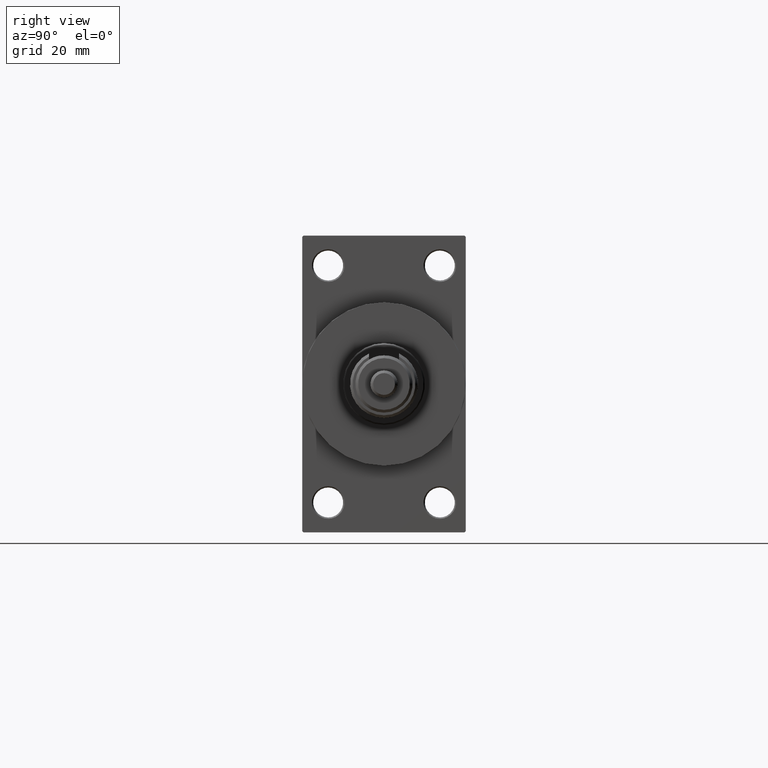
[diagram: clean part render]
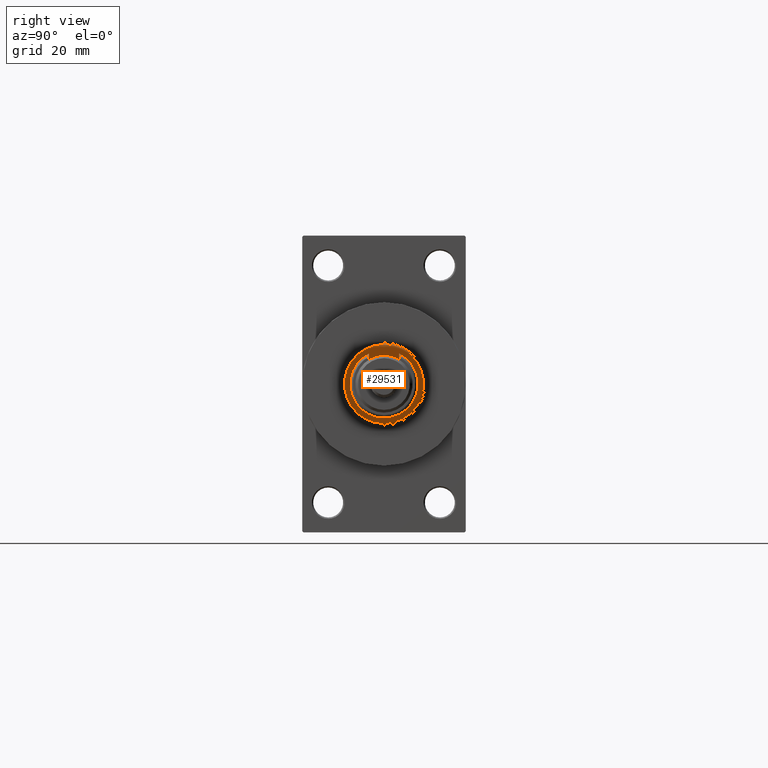
[diagram: same view with one face highlighted and labeled with its STEP entity id]
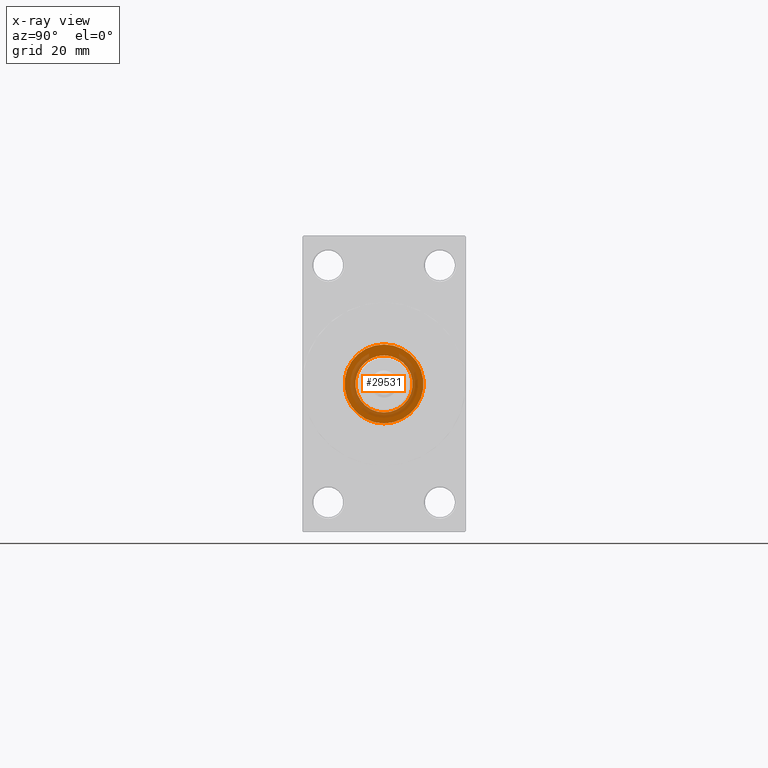
[diagram: x-ray of the same camera — body ghosted, the highlighted face saturated]
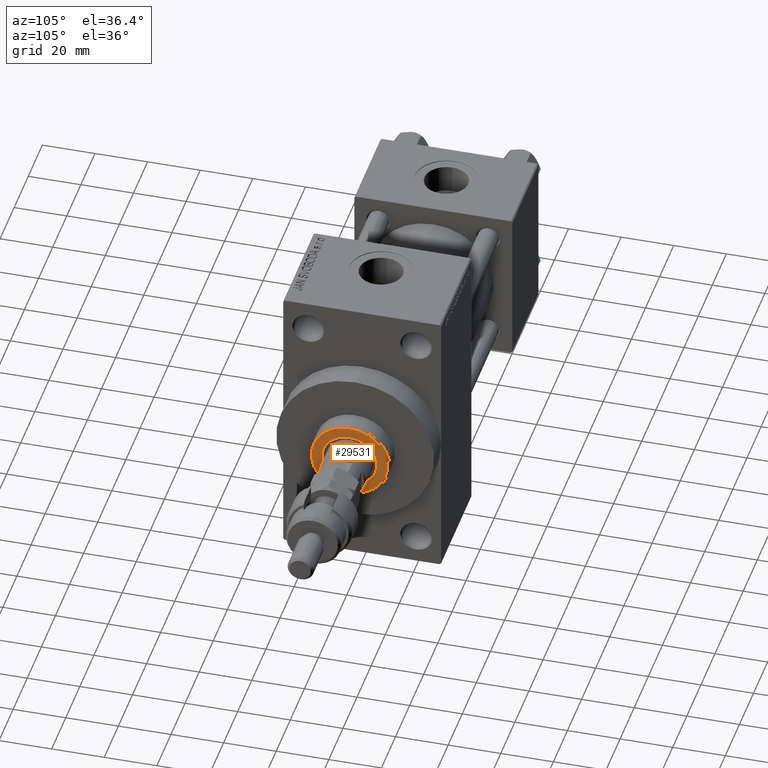
[diagram: same view with one face highlighted and labeled with its STEP entity id]
A machine part, right view. The second image highlights one B-rep face of the part: STEP entity #29531.
The next image is the same camera in x-ray: the body ghosted, the highlighted face saturated — about 39% of this face is hidden behind the body in this view.
A second angle (auxiliary view) of the same face is appended — the face is thin or edge-on in the first view.
In plain terms, the highlighted planar face has unit normal (1, -0, -0).
Its self-contained STEP definition (entity closure, byte-faithful):
#1975 = ORIENTED_EDGE ( 'NONE', *, *, #33935, .F. ) ;
#2108 = CARTESIAN_POINT ( 'NONE',  ( 0.000000000000000000, 0.000000000000000000, 51.25999999999999801 ) ) ;
#8774 = EDGE_CURVE ( 'NONE', #35781, #17901, #47987, .T. ) ;
#9178 = AXIS2_PLACEMENT_3D ( 'NONE', #2108, #21323, #36020 ) ;
#10050 = ORIENTED_EDGE ( 'NONE', *, *, #48961, .T. ) ;
#10380 = CARTESIAN_POINT ( 'NONE',  ( 0.000000000000000000, 0.000000000000000000, 51.25999999999999801 ) ) ;
#10581 = VERTEX_POINT ( 'NONE', #21591 ) ;
#10956 = AXIS2_PLACEMENT_3D ( 'NONE', #44468, #44715, #17630 ) ;
#15233 = DIRECTION ( 'NONE',  ( 1.000000000000000000, 0.000000000000000000, 0.000000000000000000 ) ) ;
#16676 = AXIS2_PLACEMENT_3D ( 'NONE', #37801, #22580, #15233 ) ;
#16779 = EDGE_LOOP ( 'NONE', ( #10050, #49506 ) ) ;
#17630 = DIRECTION ( 'NONE',  ( 1.000000000000000000, 0.000000000000000000, 0.000000000000000000 ) ) ;
#17901 = VERTEX_POINT ( 'NONE', #31363 ) ;
#18685 = DIRECTION ( 'NONE',  ( 1.000000000000000000, 0.000000000000000000, -0.000000000000000000 ) ) ;
#19919 = EDGE_LOOP ( 'NONE', ( #1975, #42841 ) ) ;
#20488 = EDGE_CURVE ( 'NONE', #10581, #25566, #47458, .T. ) ;
#21323 = DIRECTION ( 'NONE',  ( 0.000000000000000000, 0.000000000000000000, 1.000000000000000000 ) ) ;
#21591 = CARTESIAN_POINT ( 'NONE',  ( 14.49999999999999112, 1.806354028742345013E-15, 51.25999999999999801 ) ) ;
#22580 = DIRECTION ( 'NONE',  ( 0.000000000000000000, 0.000000000000000000, 1.000000000000000000 ) ) ;
#25566 = VERTEX_POINT ( 'NONE', #31915 ) ;
#26306 = DIRECTION ( 'NONE',  ( 1.000000000000000000, 0.000000000000000000, 0.000000000000000000 ) ) ;
#26529 = FACE_OUTER_BOUND ( 'NONE', #16779, .T. ) ;
#29531 = ADVANCED_FACE ( 'NONE', ( #30092, #26529 ), #45059, .T. ) ;
#29852 = DIRECTION ( 'NONE',  ( 0.000000000000000000, 0.000000000000000000, 1.000000000000000000 ) ) ;
#30092 = FACE_BOUND ( 'NONE', #19919, .T. ) ;
#31363 = CARTESIAN_POINT ( 'NONE',  ( 10.50000000000000000, 0.000000000000000000, 51.25999999999999801 ) ) ;
#31915 = CARTESIAN_POINT ( 'NONE',  ( -14.49999999999999112, 0.000000000000000000, 51.25999999999999801 ) ) ;
#33935 = EDGE_CURVE ( 'NONE', #17901, #35781, #34359, .T. ) ;
#34359 = CIRCLE ( 'NONE', #10956, 10.50000000000000000 ) ;
#35781 = VERTEX_POINT ( 'NONE', #38090 ) ;
#36020 = DIRECTION ( 'NONE',  ( 1.000000000000000000, 0.000000000000000000, 0.000000000000000000 ) ) ;
#36912 = CIRCLE ( 'NONE', #16676, 14.49999999999999112 ) ;
#37801 = CARTESIAN_POINT ( 'NONE',  ( 0.000000000000000000, 0.000000000000000000, 51.25999999999999801 ) ) ;
#38090 = CARTESIAN_POINT ( 'NONE',  ( -10.50000000000000000, 1.285879139104720831E-15, 51.25999999999999801 ) ) ;
#41534 = AXIS2_PLACEMENT_3D ( 'NONE', #10380, #29852, #18685 ) ;
#42247 = DIRECTION ( 'NONE',  ( 0.000000000000000000, 0.000000000000000000, 1.000000000000000000 ) ) ;
#42841 = ORIENTED_EDGE ( 'NONE', *, *, #8774, .F. ) ;
#44468 = CARTESIAN_POINT ( 'NONE',  ( 0.000000000000000000, 0.000000000000000000, 51.25999999999999801 ) ) ;
#44715 = DIRECTION ( 'NONE',  ( 0.000000000000000000, 0.000000000000000000, 1.000000000000000000 ) ) ;
#45059 = PLANE ( 'NONE',  #41534 ) ;
#46058 = CARTESIAN_POINT ( 'NONE',  ( 0.000000000000000000, 0.000000000000000000, 51.25999999999999801 ) ) ;
#47458 = CIRCLE ( 'NONE', #49907, 14.49999999999999112 ) ;
#47987 = CIRCLE ( 'NONE', #9178, 10.50000000000000000 ) ;
#48961 = EDGE_CURVE ( 'NONE', #25566, #10581, #36912, .T. ) ;
#49506 = ORIENTED_EDGE ( 'NONE', *, *, #20488, .T. ) ;
#49907 = AXIS2_PLACEMENT_3D ( 'NONE', #46058, #42247, #26306 ) ;